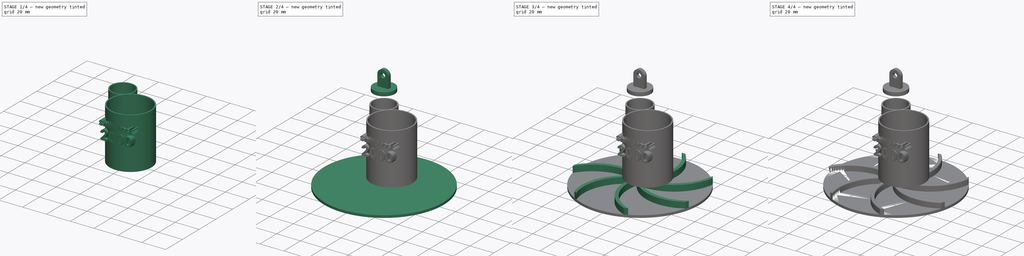
[diagram: build sequence overview — one tinted view per stage of 4, left to right]
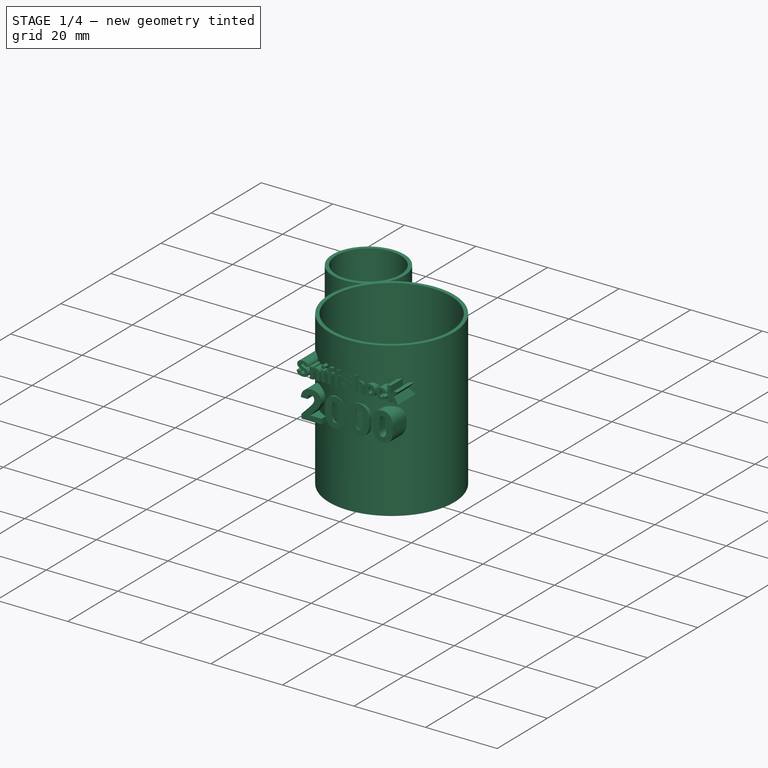
[diagram: stage 1 of 4 — iso view after this stage's code; geometry added in this stage tinted green]
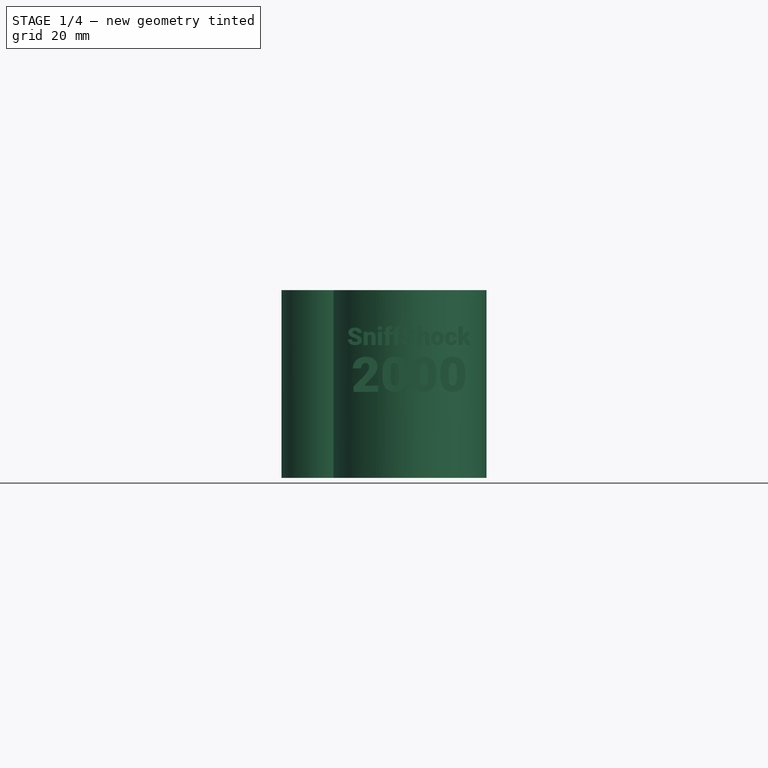
[diagram: stage 1 of 4 — front view after this stage's code; geometry added in this stage tinted green]
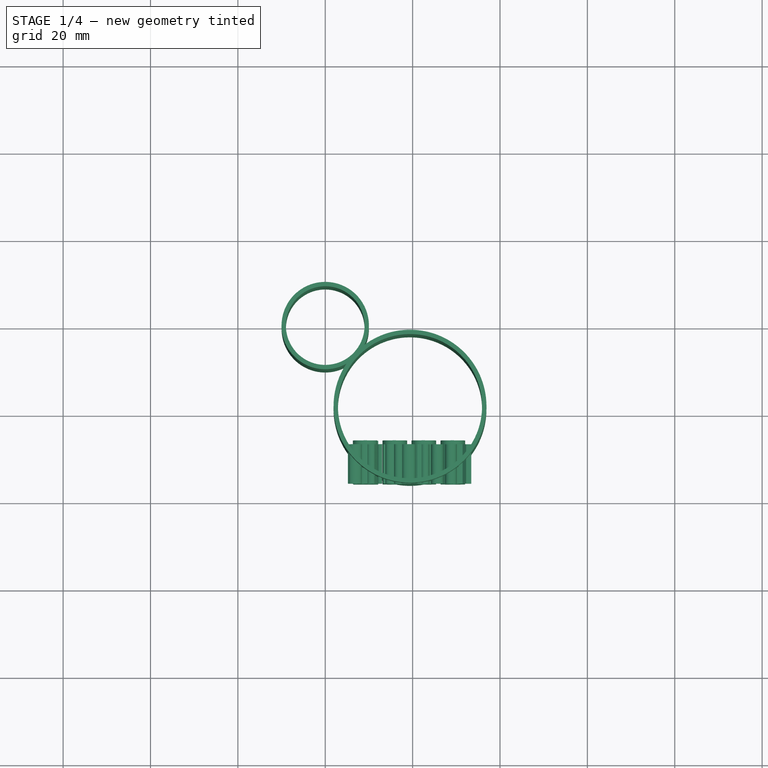
[diagram: stage 1 of 4 — top view after this stage's code; geometry added in this stage tinted green]
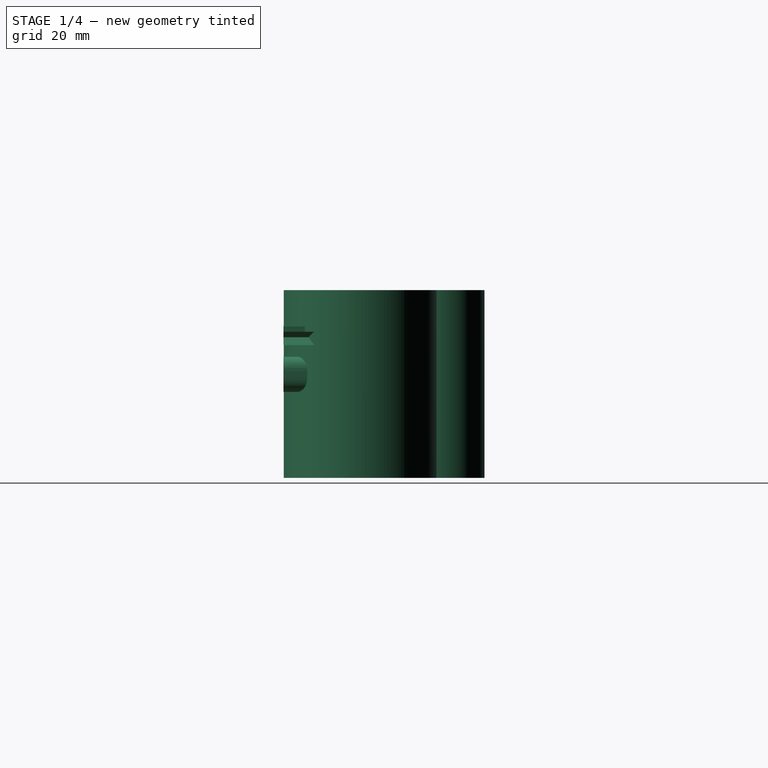
[diagram: stage 1 of 4 — right view after this stage's code; geometry added in this stage tinted green]
FCSTD DOCUMENT  (FreeCAD 0.19R24291 (Git))
Label: sniff-shock
License: All rights reserved
LicenseURL: http://en.wikipedia.org/wiki/All_rights_reserved
objects: Sketcher::SketchObject×7, PartDesign::Pad×7, PartDesign::Body×3, Raytracing::RayFeature×3, PartDesign::Pocket×2, PartDesign::Plane×2, Part::Part2DObjectPython×2, PartDesign::PolarPattern×1, PartDesign::Fillet×1, PartDesign::ShapeBinder×1, Raytracing::RayProject×1
note: 36 computed .brp shape members not serialized (recipe doc carries the construction recipe); baked Part::Feature solids carry a one-line shape summary decoded from their .brp

FEATURE [PartDesign::Body] Body
  Group = -> [Sketch,Pad,Sketch001,Pad001,PolarPattern,Fillet,Sketch002,Pocket,Sketch003,Pocket001]
  Origin = -> Origin
  Tip = -> Pocket001
FEATURE [PartDesign::Plane] DatumPlane
  AttachmentOffset = pos=(0,0,20) rot=(0,0,1;0rad)
  Length = 74.1878
  MapMode = 2
  Placement = pos=(0,0,20) rot=(0,0,1;0rad)
  ResizeMode = 0
  Width = 73.2895
FEATURE [Sketcher::SketchObject] Sketch004
  FullyConstrained = false
  MapMode = 5
  Placement = pos=(0,0,20) rot=(0,0,1;0rad)
  Support = -> [DatumPlane]
  sketch-geometry (4):
    g0: ArcOfCircle CenterX=19.4011 CenterY=-18.4502 CenterZ=0 NormalX=0 NormalY=0 NormalZ=1 AngleXU=0 Radius=17.5 StartAngle=2.55442 EndAngle=8.49139
    g1: ArcOfCircle CenterX=0 CenterY=0 CenterZ=0 NormalX=0 NormalY=0 NormalZ=1 AngleXU=0 Radius=10 StartAngle=5.82909 EndAngle=11.4999
    g2: Circle CenterX=0 CenterY=0 CenterZ=0 NormalX=0 NormalY=0 NormalZ=1 AngleXU=0 Radius=9
    g3: Circle CenterX=19.4011 CenterY=-18.4502 CenterZ=0 NormalX=0 NormalY=0 NormalZ=1 AngleXU=0 Radius=16.5
  constraints (9):
    c: Coincident(g1,g0)
    c: Coincident(g1,g0)
    c: Coincident(g1,g-1)
    c: Diameter(g1) = 20
    c: Coincident(g2,g1)
    c: Coincident(g3,g0)
    c: Diameter(g2) = 18
    c: Diameter(g3) = 33
    c: Diameter(g0) = 35
FEATURE [PartDesign::Pad] Pad002
  Direction = (1,1,1)
  Length = 43
  Length2 = 100
  Placement = pos=(0,0,20) rot=(0,0,1;0rad)
  Profile = -> Sketch004
  Type = 0
FEATURE [PartDesign::Body] Body002
  Group = -> [DatumPlane001,CopyXY_Plane,Sketch005,Pad003,Sketch006,Pad004]
  Origin = -> Origin002
  Tip = -> Pad004
FEATURE [Raytracing::RayFeature] Body_View
  Result = <blob: 392698 chars omitted>
  Source = -> Body
  Transparency = 0
FEATURE [Raytracing::RayFeature] Body002_View
  Result = <blob: 59218 chars omitted>
  Source = -> Body002
  Transparency = 0
FEATURE [Part::Part2DObjectPython] ShapeString  # Draft 2D object (typed FeaturePython)
  FontFile = <userpath>/.fonts/Roboto/hinted/Roboto-Black.ttf
  Placement = pos=(5,-36,50.39) rot=(1,0,0;1.5708rad)
  Size = 5
  String = SniffShock
  Tracking = 0
FEATURE [Part::Part2DObjectPython] ShapeString001  # Draft 2D object (typed FeaturePython)
  FontFile = <userpath>/.fonts/Roboto/hinted/Roboto-Black.ttf
  Placement = pos=(6,-36,39.69) rot=(1,0,0;1.5708rad)
  Size = 10
  String = 2000
  Tracking = 0
FEATURE [PartDesign::Pad] Pad005
  BaseFeature = -> Pad002
  Direction = (1,1,1)
  Length = 9
  Length2 = 100
  Placement = pos=(0,0,20) rot=(0,0,1;0rad)
  Profile = -> ShapeString
  Reversed = true
  Type = 0
FEATURE [PartDesign::Pad] Pad006
  BaseFeature = -> Pad005
  Direction = (1,1,1)
  Length = 10
  Length2 = 100
  Placement = pos=(0,0,20) rot=(0,0,1;0rad)
  Profile = -> ShapeString001
  Reversed = true
  Type = 0
FEATURE [PartDesign::Body] Body001
  Group = -> [DatumPlane,Sketch004,Pad002,ShapeString,ShapeString001,Pad005,Pad006]
  Origin = -> Origin001
  Tip = -> Pad006
FEATURE [Raytracing::RayFeature] Body001_View
  Source = -> Body001
  Transparency = 0
FEATURE [Raytracing::RayProject] PovProject
  Camera = // declares position and view direction\n\n// Generated by FreeCAD (http://www.freecadweb.org/)\n#declare cam_location =  <-9.55624,152.539,-145.494>;\n#declare cam_look_at  = <14.8321,53.6393,-36.522>;\n#declare cam_sky      = <-0.0403484,0.735388,0.676444>;\n#declare cam_angle    = 45; \ncamera {\n  location  cam_location\n  look_at   cam_look_at\n  sky       cam_sky\n  angle     cam_angle \n  right x*1920/1080\n}
  Group = -> [Body_View,Body001_View,Body002_View]
  Template = <path>
note: 1 file-system path scrubbed to <path> (originals preserved in the JSON sidecar)
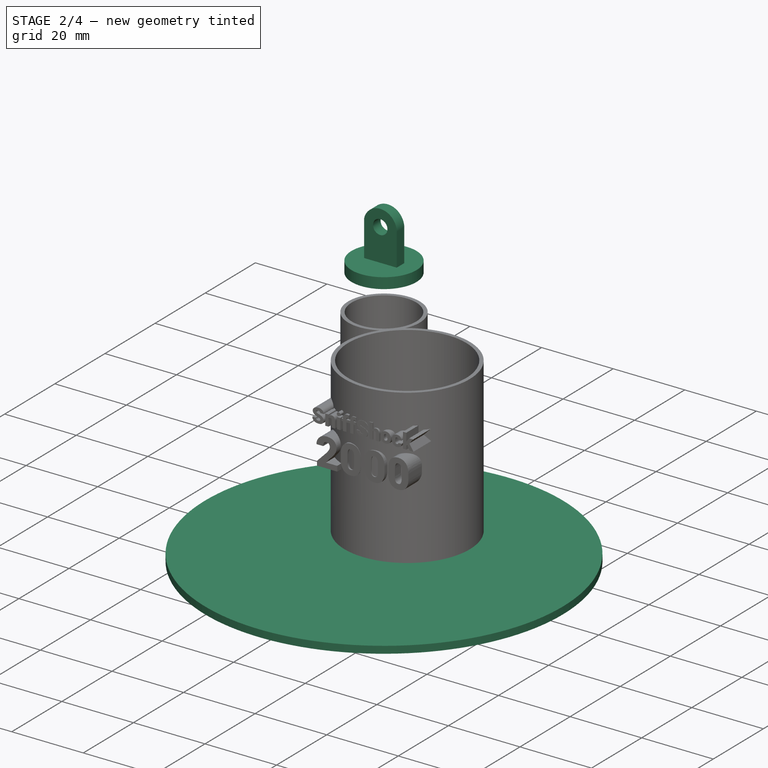
[diagram: stage 2 of 4 — iso view after this stage's code; geometry added in this stage tinted green]
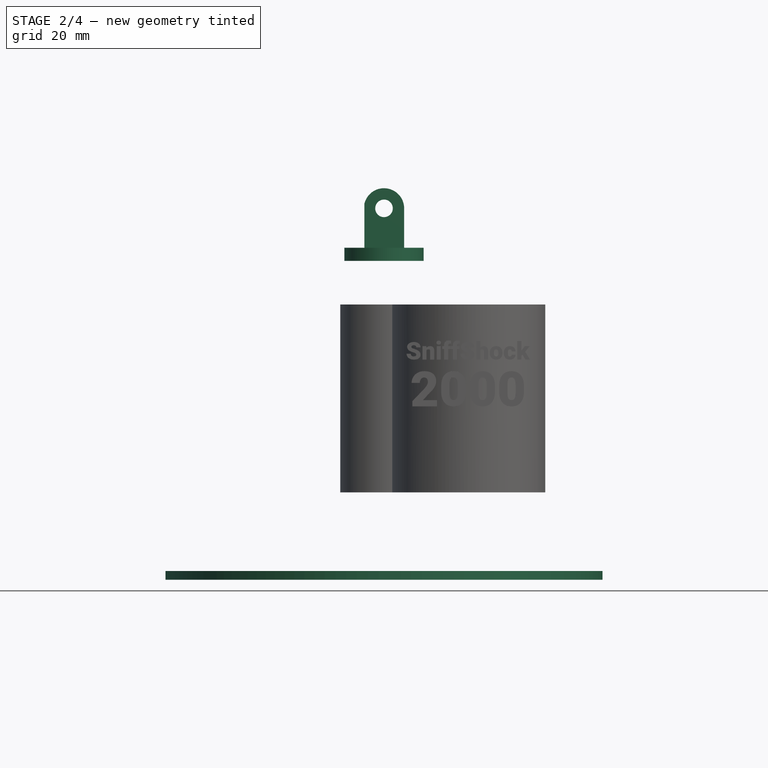
[diagram: stage 2 of 4 — front view after this stage's code; geometry added in this stage tinted green]
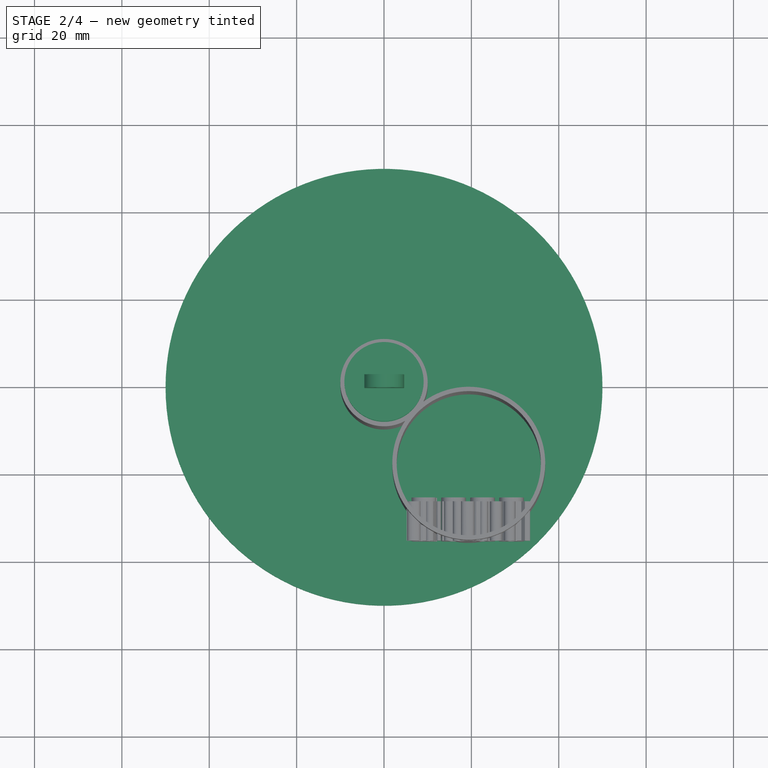
[diagram: stage 2 of 4 — top view after this stage's code; geometry added in this stage tinted green]
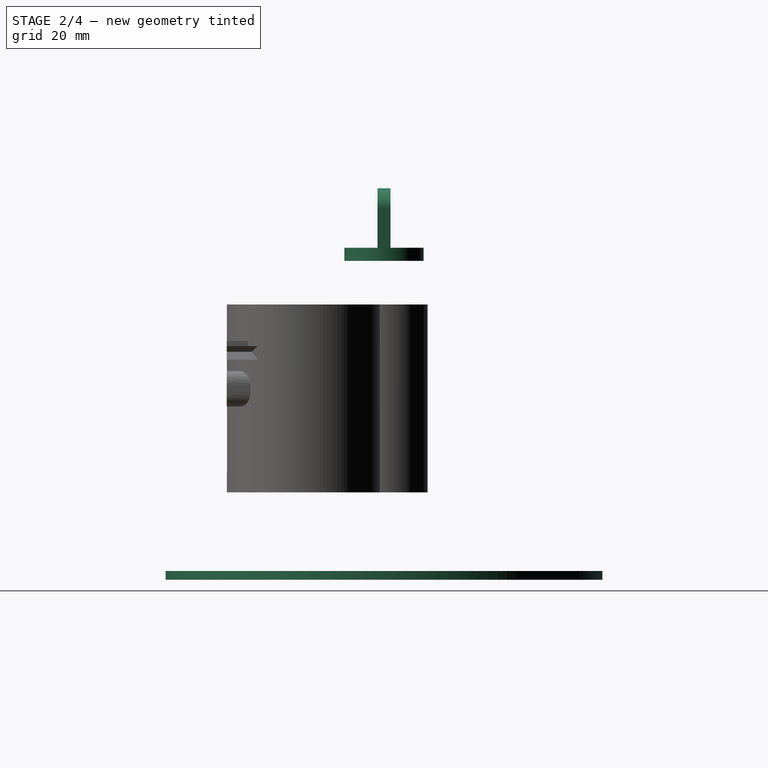
[diagram: stage 2 of 4 — right view after this stage's code; geometry added in this stage tinted green]
FEATURE [Sketcher::SketchObject] Sketch
  FullyConstrained = true
  MapMode = 5
  Support = -> [XY_Plane]
  sketch-geometry (1):
    g0: Circle CenterX=0 CenterY=0 CenterZ=0 NormalX=0 NormalY=0 NormalZ=1 AngleXU=0 Radius=50
  constraints (2):
    c: Coincident(g0,g-1)
    c: Diameter(g0) = 100
FEATURE [PartDesign::Pad] Pad
  Direction = (0,0,1)
  Length = 2
  Length2 = 100
  Profile = -> Sketch
  Type = 0
FEATURE [PartDesign::ShapeBinder] CopyXY_Plane
  TraceSupport = false
FEATURE [PartDesign::Plane] DatumPlane001
  AttachmentOffset = pos=(0,0,73) rot=(0,0,1;0rad)
  Length = 60
  MapMode = 5
  Placement = pos=(0,0,73) rot=(0,0,1;0rad)
  ResizeMode = 0
  Support = -> [CopyXY_Plane]
  Width = 60
FEATURE [Sketcher::SketchObject] Sketch005
  FullyConstrained = false
  MapMode = 5
  Placement = pos=(0,0,73) rot=(0,0,1;0rad)
  Support = -> [DatumPlane001]
  sketch-geometry (1):
    g0: Circle CenterX=0 CenterY=0 CenterZ=0 NormalX=0 NormalY=0 NormalZ=1 AngleXU=0 Radius=9.0703
  constraints (1):
    c: Coincident(g0,g-1)
FEATURE [PartDesign::Pad] Pad003
  Direction = (1,1,1)
  Length = 3
  Length2 = 100
  Placement = pos=(0,0,73) rot=(0,0,1;0rad)
  Profile = -> Sketch005
  Type = 0
FEATURE [Sketcher::SketchObject] Sketch006
  ExternalGeometry = -> [Pad003]
  FullyConstrained = false
  MapMode = 5
  Placement = pos=(0,0,0) rot=(1,0,0;1.5708rad)
  Support = -> [XZ_Plane002]
  sketch-geometry (5):
    g0: LineSegment StartX=-4.50276 StartY=76 StartZ=0 EndX=-4.50276 EndY=86 EndZ=0
    g1: LineSegment StartX=4.6064 StartY=76 StartZ=0 EndX=4.6064 EndY=85.1947 EndZ=0
    g2: ArcOfCircle CenterX=0 CenterY=85.0112 CenterZ=0 NormalX=0 NormalY=0 NormalZ=1 AngleXU=0 Radius=4.61006 StartAngle=0.0398273 EndAngle=2.92542
    g3: Circle CenterX=0 CenterY=85.0112 CenterZ=0 NormalX=0 NormalY=0 NormalZ=1 AngleXU=0 Radius=2.00953
    g4: LineSegment StartX=-4.50276 StartY=76 StartZ=0 EndX=4.6064 EndY=76 EndZ=0
  constraints (11):
    c: PointOnObject(g0,g-3)
    c: Vertical(g0)
    c: PointOnObject(g1,g-3)
    c: Vertical(g1)
    c: PointOnObject(g2,g-2)
    c: Coincident(g2,g0)
    c: Coincident(g2,g1)
    c: DistanceY(g0,g0) = 10
    c: Coincident(g3,g2)
    c: Coincident(g4,g0)
    c: Coincident(g4,g1)
FEATURE [PartDesign::Pad] Pad004
  BaseFeature = -> Pad003
  Direction = (1,1,1)
  Length = 3
  Length2 = 100
  Midplane = true
  Placement = pos=(0,0,73) rot=(0,0,1;0rad)
  Profile = -> Sketch006
  Type = 0
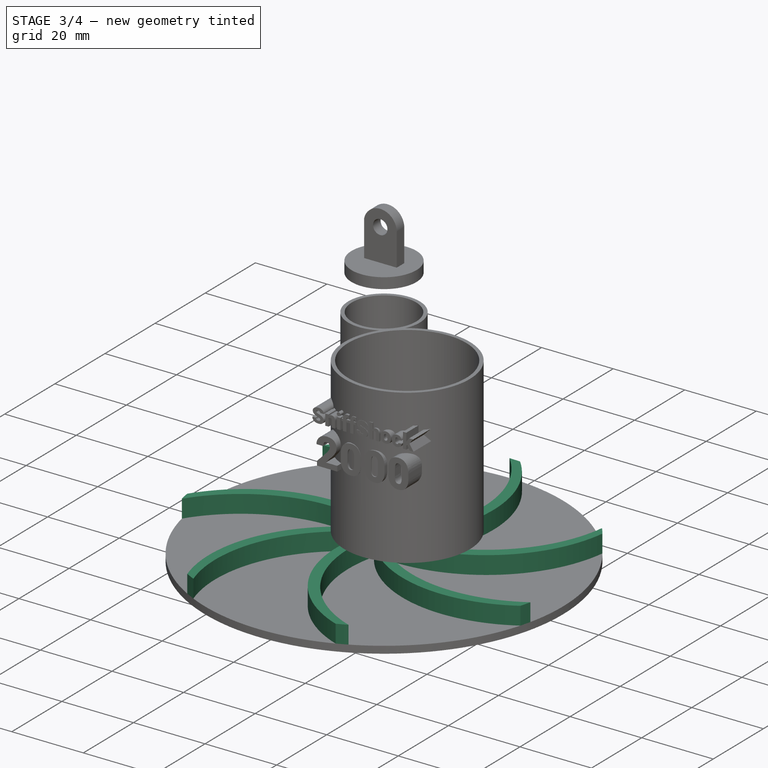
[diagram: stage 3 of 4 — iso view after this stage's code; geometry added in this stage tinted green]
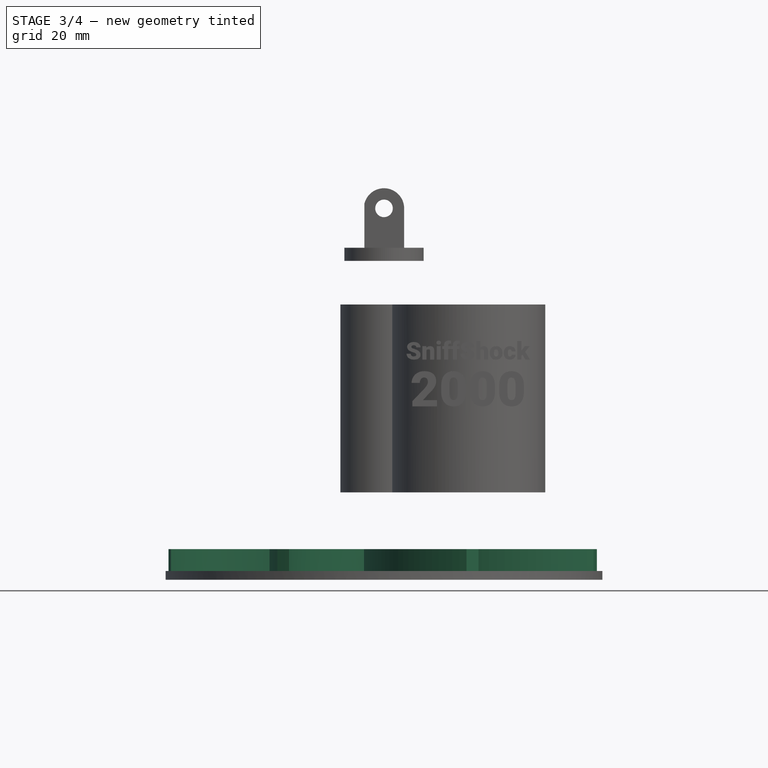
[diagram: stage 3 of 4 — front view after this stage's code; geometry added in this stage tinted green]
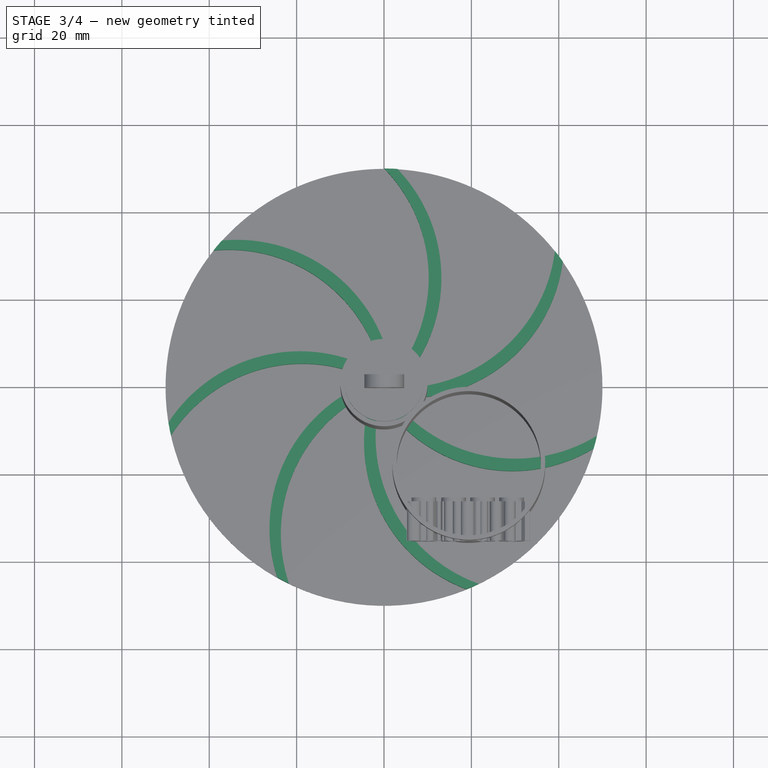
[diagram: stage 3 of 4 — top view after this stage's code; geometry added in this stage tinted green]
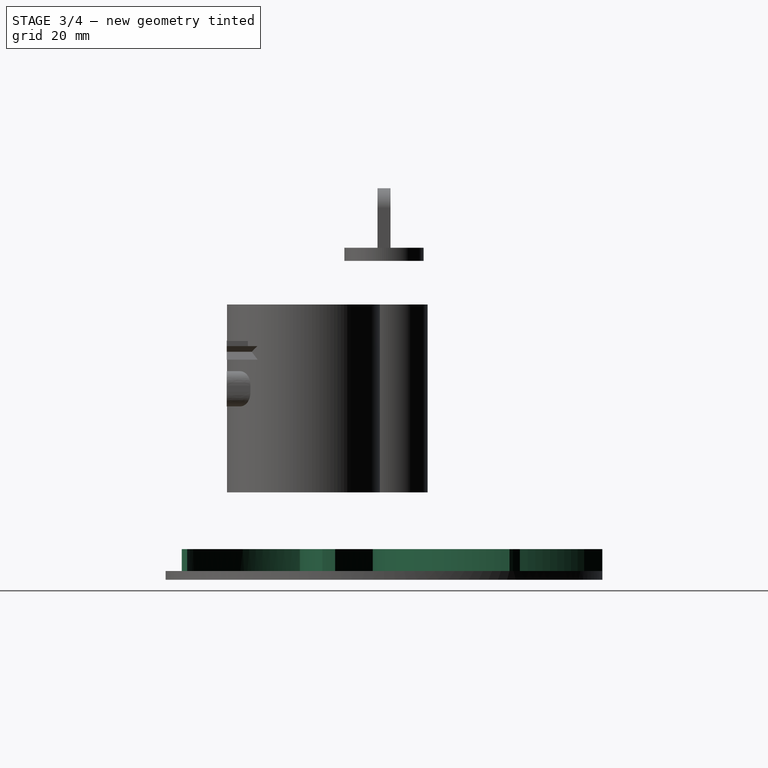
[diagram: stage 3 of 4 — right view after this stage's code; geometry added in this stage tinted green]
FEATURE [Sketcher::SketchObject] Sketch001
  ExternalGeometry = -> [Pad]
  FullyConstrained = false
  MapMode = 5
  Placement = pos=(0,0,2) rot=(0,0,1;0rad)
  Support = -> [Pad]
  sketch-geometry (4):
    g0: ArcOfCircle CenterX=-25.6145 CenterY=24.9929 CenterZ=0 NormalX=0 NormalY=0 NormalZ=1 AngleXU=0 Radius=35.845 StartAngle=5.51175 EndAngle=7.05509
    g1: ArcOfCircle CenterX=-22.8415 CenterY=24.9475 CenterZ=0 NormalX=0 NormalY=0 NormalZ=1 AngleXU=0 Radius=35.9767 StartAngle=5.51706 EndAngle=7.04984
    g2: ArcOfCircle CenterX=0.0832921 CenterY=0.00312394 CenterZ=0 NormalX=0 NormalY=0 NormalZ=1 AngleXU=0 Radius=49.9918 StartAngle=1.51101 EndAngle=1.57103
    g3: LineSegment StartX=0.0832921 StartY=0.00312394 StartZ=0 EndX=3.08329 EndY=0.00312394 EndZ=0
  constraints (9):
    c: PointOnObject(g1,g-3)
    c: DistanceX(g0,g1) = 3
    c: Coincident(g2,g0)
    c: Coincident(g2,g1)
    c: Coincident(g2,g0)
    c: Coincident(g3,g0)
    c: Coincident(g3,g1)
    c: Horizontal(g3)
    c: Distance(g0,g1) = 3
FEATURE [PartDesign::Pad] Pad001
  BaseFeature = -> Pad
  Direction = (0,0,1)
  Length = 5
  Length2 = 100
  Profile = -> Sketch001
  Type = 0
FEATURE [PartDesign::PolarPattern] PolarPattern
  Angle = 360
  Axis = -> Sketch001 [N_Axis]
  BaseFeature = -> Pad001
  Occurrences = 7
  Originals = -> [Pad001]
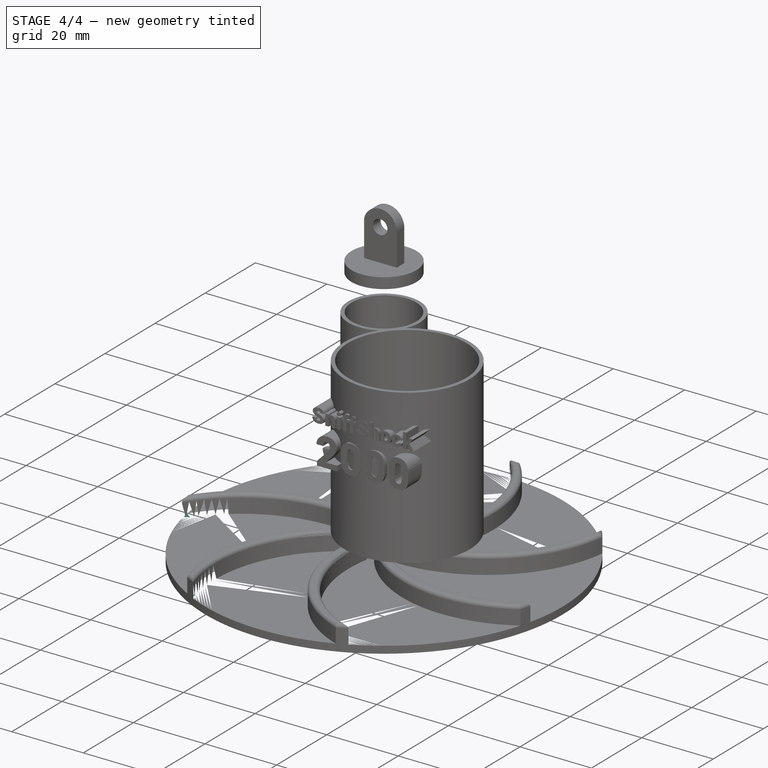
[diagram: stage 4 of 4 — iso view after this stage's code; geometry added in this stage tinted green]
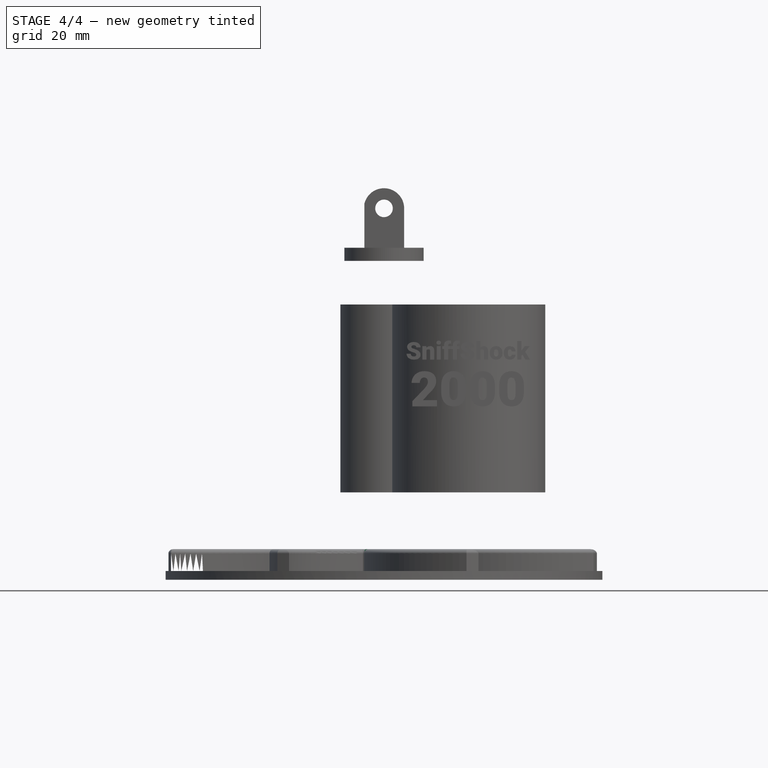
[diagram: stage 4 of 4 — front view after this stage's code; geometry added in this stage tinted green]
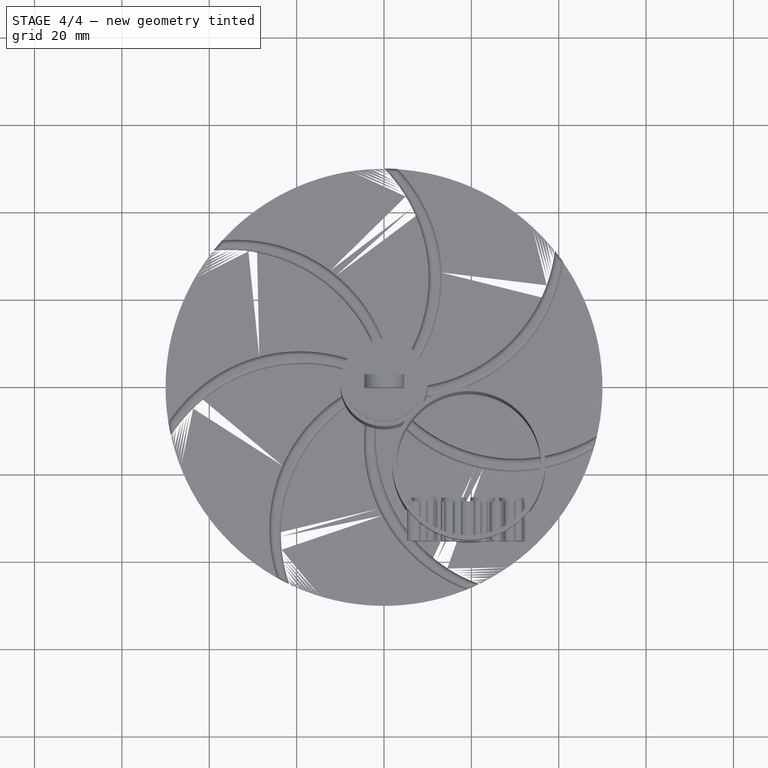
[diagram: stage 4 of 4 — top view after this stage's code; geometry added in this stage tinted green]
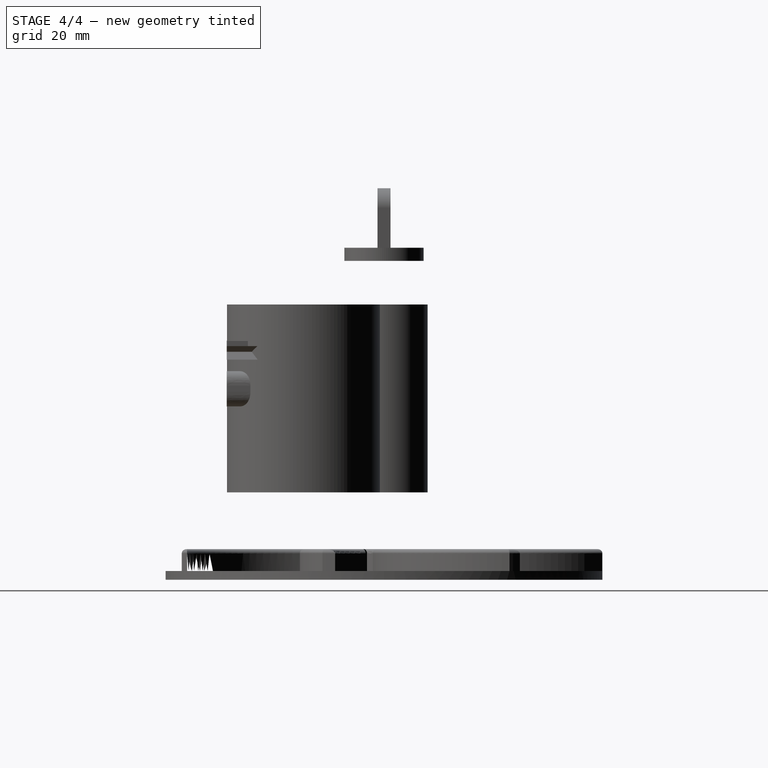
[diagram: stage 4 of 4 — right view after this stage's code; geometry added in this stage tinted green]
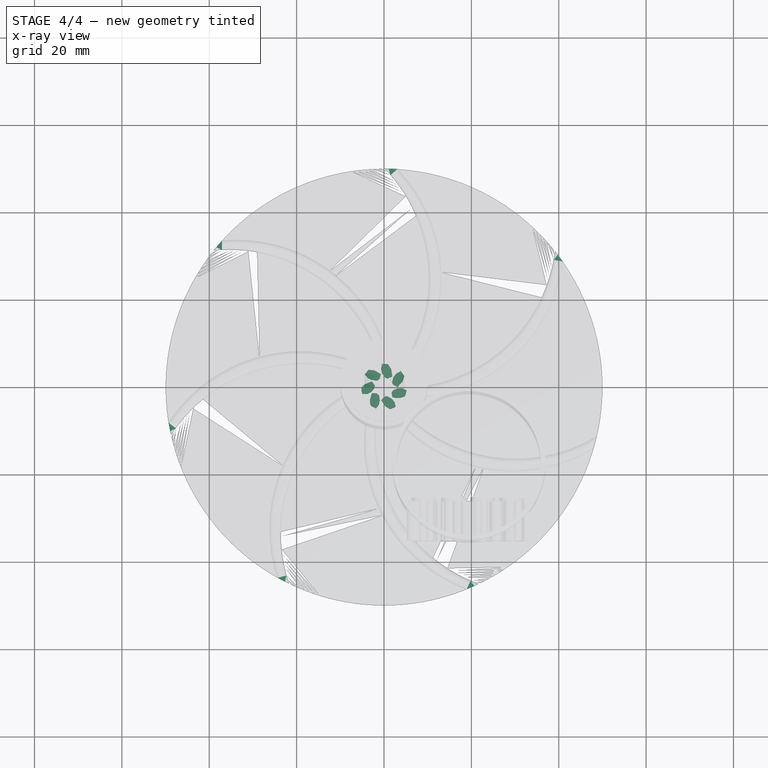
[diagram: stage 4 of 4 — x-ray composite at the top view; earlier geometry ghosted, this stage's added geometry solid]
FEATURE [PartDesign::Fillet] Fillet
  Base = -> PolarPattern [Face33,Face32,Face34,Face35,Face38,Face37,Face36]
  BaseFeature = -> PolarPattern
  Radius = 1
  SupportTransform = false
FEATURE [Sketcher::SketchObject] Sketch002
  FullyConstrained = false
  MapMode = 5
  Placement = pos=(0,0,2) rot=(0,0,1;0rad)
  Support = -> [Fillet]
  sketch-geometry (1):
    g0: Circle CenterX=0 CenterY=0 CenterZ=0 NormalX=0 NormalY=0 NormalZ=1 AngleXU=0 Radius=5.23144
  constraints (1):
    c: Coincident(g0,g-1)
FEATURE [PartDesign::Pocket] Pocket
  BaseFeature = -> Fillet
  Length = 5
  Length2 = 100
  Profile = -> Sketch002
  Reversed = true
  Type = 1
FEATURE [Sketcher::SketchObject] Sketch003
  FullyConstrained = false
  MapMode = 5
  Placement = pos=(0,0,2) rot=(0,0,1;0rad)
  Support = -> [Pocket]
  sketch-geometry (1):
    g0: Circle CenterX=0 CenterY=0 CenterZ=0 NormalX=0 NormalY=0 NormalZ=1 AngleXU=0 Radius=2.13421
  constraints (1):
    c: Coincident(g0,g-1)
FEATURE [PartDesign::Pocket] Pocket001
  BaseFeature = -> Pocket
  Length = 5
  Length2 = 100
  Profile = -> Sketch003
  Type = 1
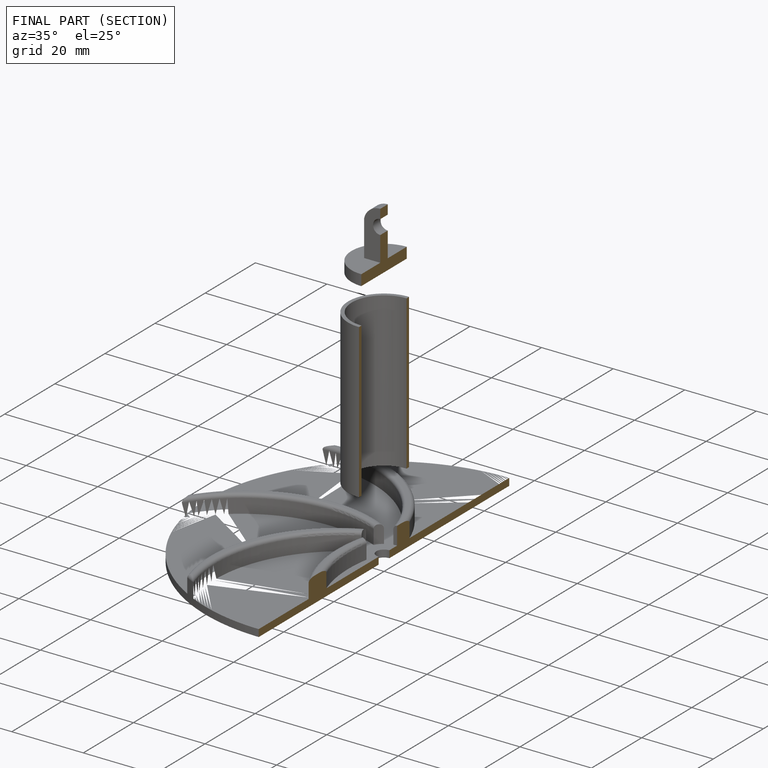
[diagram: finished part — half-section view (interior)]
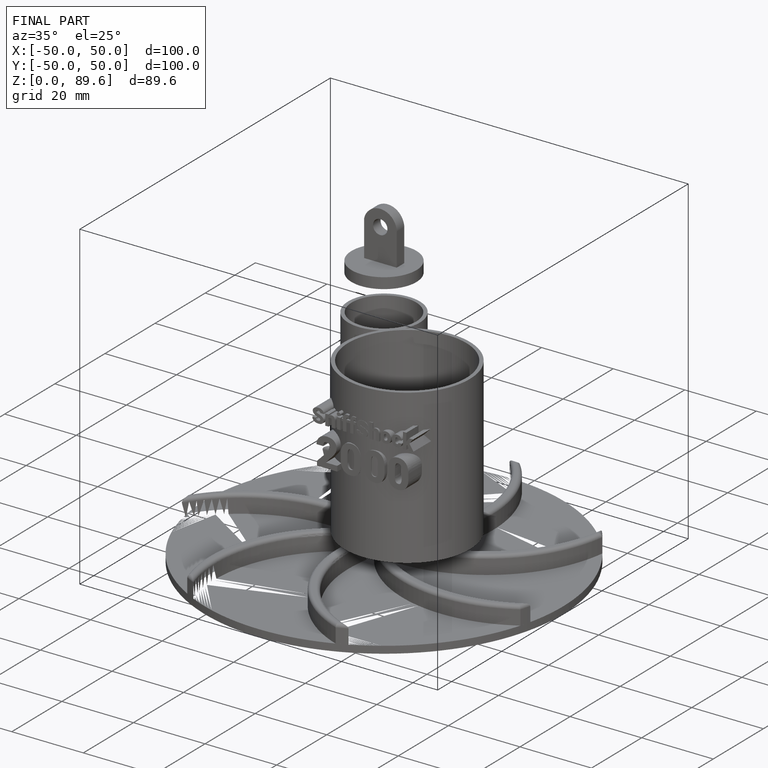
[diagram: finished part — iso view with bounding-box wireframe]
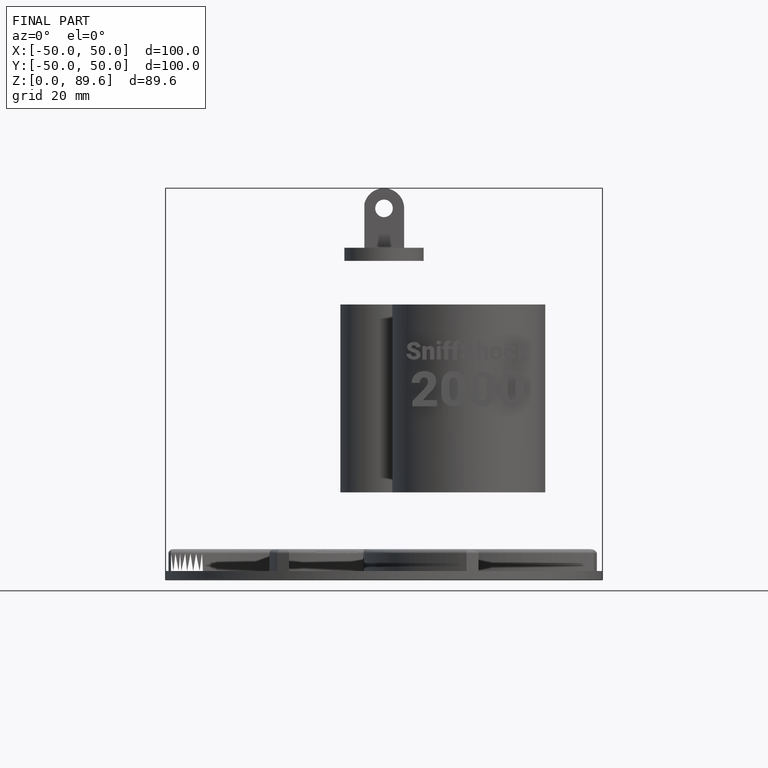
[diagram: finished part — front view with bounding-box wireframe]
